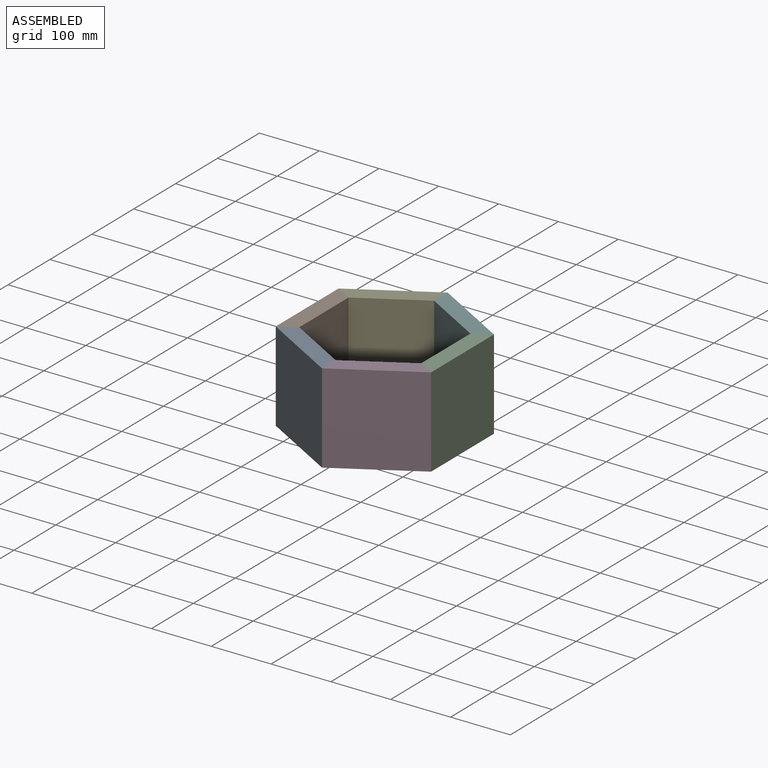
[diagram: assembled view]
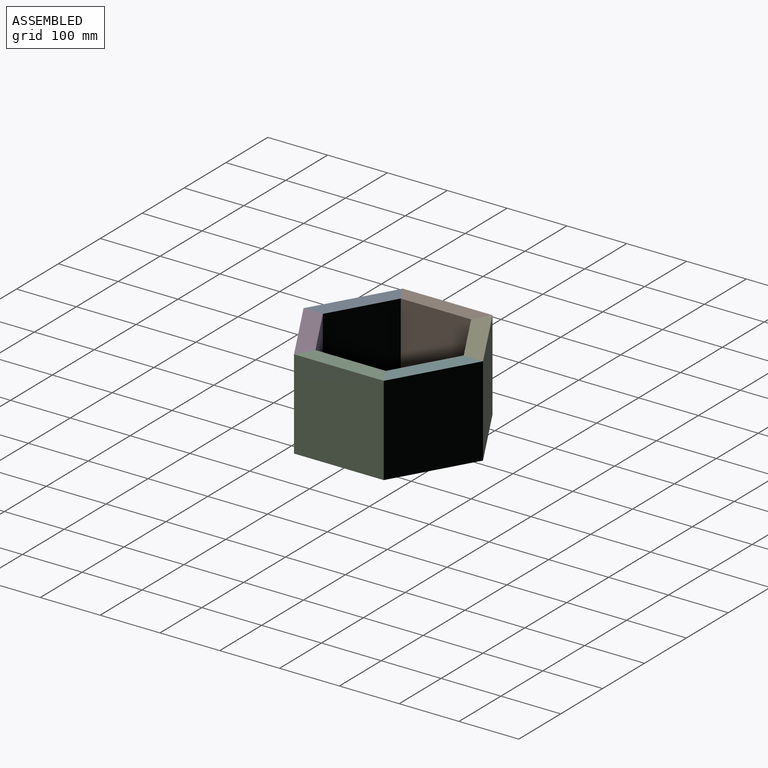
[diagram: assembled view, second angle]
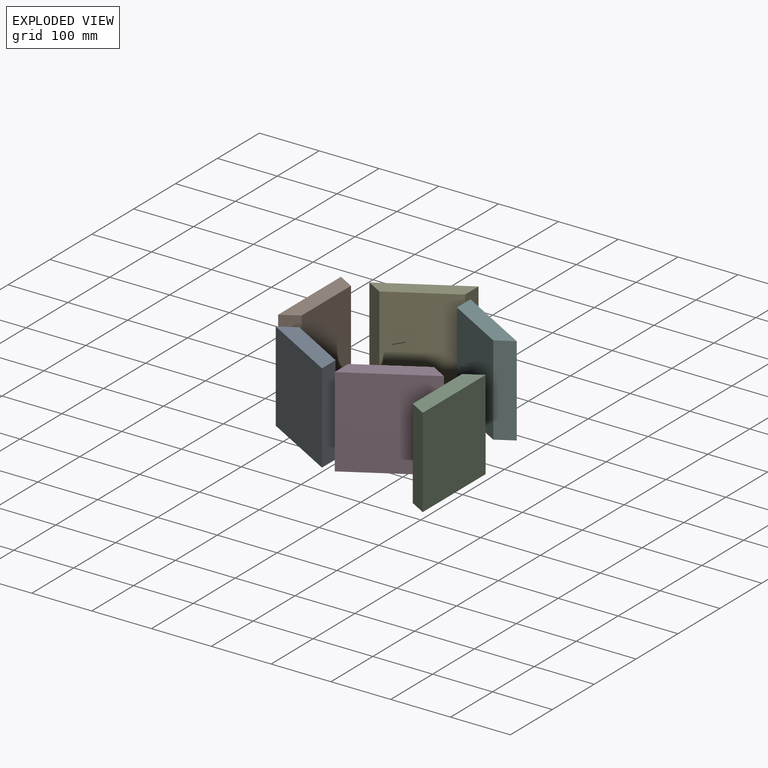
[diagram: exploded view]
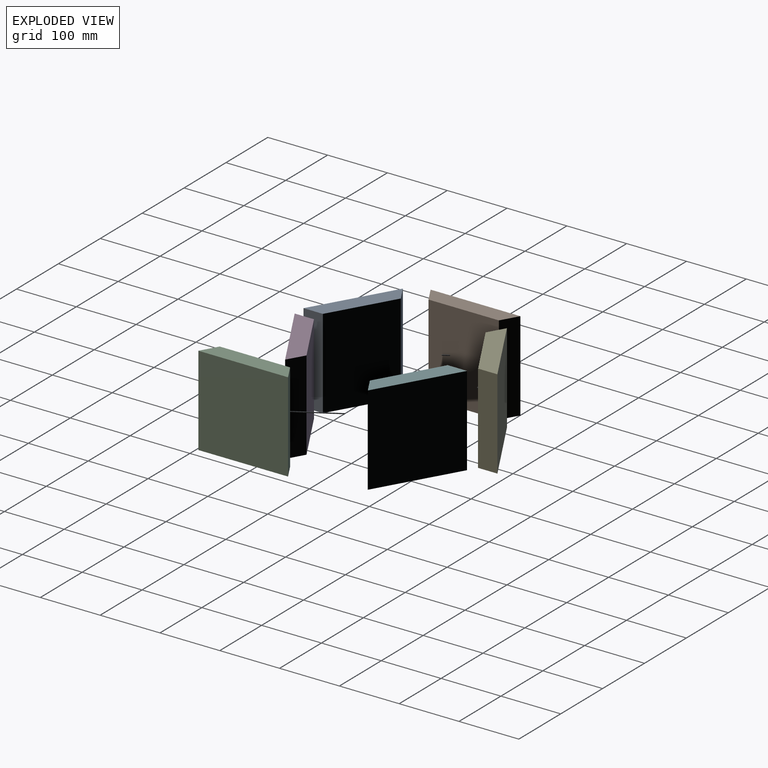
[diagram: exploded view, second angle]
ASSEMBLY  parts=6 mates=5
PART A: 6 faces, bbox 129.9x91.2x150 mm
  f0: plane 150x32.33mm, normal (1,0,0), area 4849.7mm2, adj f1,f3,f4,f5
  f1: plane 150x101.9mm, normal (0.5,0.87,0), area 17650.3mm2, adj f0,f2,f4,f5
  f2: plane 150x28mm, normal (-0.5,0.87,0), area 4849.7mm2, adj f1,f3,f4,f5
  f3: plane 150x129.9mm, normal (-0.5,-0.87,0), area 22500mm2, adj f0,f2,f4,f5
  f4: plane 129.9x91.17mm, normal (0,0,1), area 3747.4mm2, adj f0,f1,f2,f3
  f5: plane 129.9x91.17mm, normal (0,0,-1), area 3747.4mm2, adj f0,f1,f2,f3
PART B: 6 faces, bbox 28x150x150 mm
  f0: plane 150x28mm, normal (0.5,0.87,0), area 4849.7mm2, adj f1,f3,f4,f5
  f1: plane 150x150mm, normal (-1,0,0), area 22500mm2, adj f0,f2,f4,f5
  f2: plane 150x28mm, normal (0.5,-0.87,0), area 4849.7mm2, adj f1,f3,f4,f5
  f3: plane 150x117.67mm, normal (1,0,0), area 17650.3mm2, adj f0,f2,f4,f5
  f4: plane 150x28mm, normal (0,0,1), area 3747.4mm2, adj f0,f1,f2,f3
  f5: plane 150x28mm, normal (0,0,-1), area 3747.4mm2, adj f0,f1,f2,f3
PART C: 6 faces, bbox 28x150x150 mm
  f0: plane 150x117.67mm, normal (-1,0,0), area 17650.3mm2, adj f1,f3,f4,f5
  f1: plane 150x28mm, normal (-0.5,-0.87,0), area 4849.7mm2, adj f0,f2,f4,f5
  f2: plane 150x150mm, normal (1,0,0), area 22500mm2, adj f1,f3,f4,f5
  f3: plane 150x28mm, normal (-0.5,0.87,0), area 4849.7mm2, adj f0,f2,f4,f5
  f4: plane 150x28mm, normal (0,0,1), area 3747.4mm2, adj f0,f1,f2,f3
  f5: plane 150x28mm, normal (0,0,-1), area 3747.4mm2, adj f0,f1,f2,f3
PART D: 6 faces, bbox 129.9x91.2x150 mm
  f0: plane 150x28mm, normal (0.5,0.87,0), area 4849.7mm2, adj f1,f3,f4,f5
  f1: plane 150x101.9mm, normal (-0.5,0.87,0), area 17650.3mm2, adj f0,f2,f4,f5
  f2: plane 150x32.33mm, normal (-1,0,0), area 4849.7mm2, adj f1,f3,f4,f5
  f3: plane 150x129.9mm, normal (0.5,-0.87,0), area 22500mm2, adj f0,f2,f4,f5
  f4: plane 129.9x91.17mm, normal (0,0,1), area 3747.4mm2, adj f0,f1,f2,f3
  f5: plane 129.9x91.17mm, normal (0,0,-1), area 3747.4mm2, adj f0,f1,f2,f3
PART E: 6 faces, bbox 129.9x91.2x150 mm
  f0: plane 150x129.9mm, normal (-0.5,0.87,0), area 22500mm2, adj f1,f3,f4,f5
  f1: plane 150x28mm, normal (-0.5,-0.87,0), area 4849.7mm2, adj f0,f2,f4,f5
  f2: plane 150x101.9mm, normal (0.5,-0.87,0), area 17650.3mm2, adj f1,f3,f4,f5
  f3: plane 150x32.33mm, normal (1,0,0), area 4849.7mm2, adj f0,f2,f4,f5
  f4: plane 129.9x91.17mm, normal (0,0,1), area 3747.4mm2, adj f0,f1,f2,f3
  f5: plane 129.9x91.17mm, normal (0,0,-1), area 3747.4mm2, adj f0,f1,f2,f3
PART F: 6 faces, bbox 129.9x91.2x150 mm
  f0: plane 150x32.33mm, normal (-1,0,0), area 4849.7mm2, adj f1,f3,f4,f5
  f1: plane 150x101.9mm, normal (-0.5,-0.87,0), area 17650.3mm2, adj f0,f2,f4,f5
  f2: plane 150x28mm, normal (0.5,-0.87,0), area 4849.7mm2, adj f1,f3,f4,f5
  f3: plane 150x129.9mm, normal (0.5,0.87,0), area 22500mm2, adj f0,f2,f4,f5
  f4: plane 129.9x91.17mm, normal (0,0,1), area 3747.4mm2, adj f0,f1,f2,f3
  f5: plane 129.9x91.17mm, normal (0,0,-1), area 3747.4mm2, adj f0,f1,f2,f3
PLACE A at identity
PLACE B at identity
PLACE C at identity fixed
PLACE D at identity
PLACE E at identity
PLACE F at identity
MATE fastened C.f3 <-> F.f2  axis (-0.5,0.87,0) through (115.9,66.92,75)mm
MATE fastened A.f2 <-> B.f2  axis (-0.5,0.87,0) through (-115.9,-66.92,75)mm
MATE fastened A.f0 <-> D.f2  axis (1,0,0) through (0,-133.83,75)mm
MATE fastened E.f3 <-> F.f0  axis (1,0,0) through (0,133.83,75)mm
MATE fastened B.f0 <-> E.f1  axis (0.5,0.87,0) through (-115.9,66.92,75)mm
